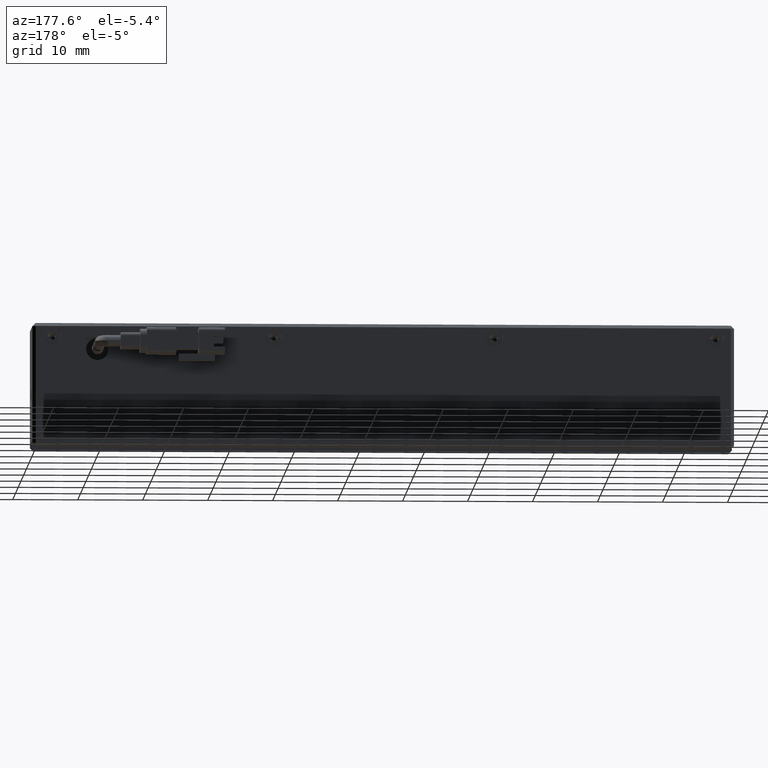
[diagram: clean part render]
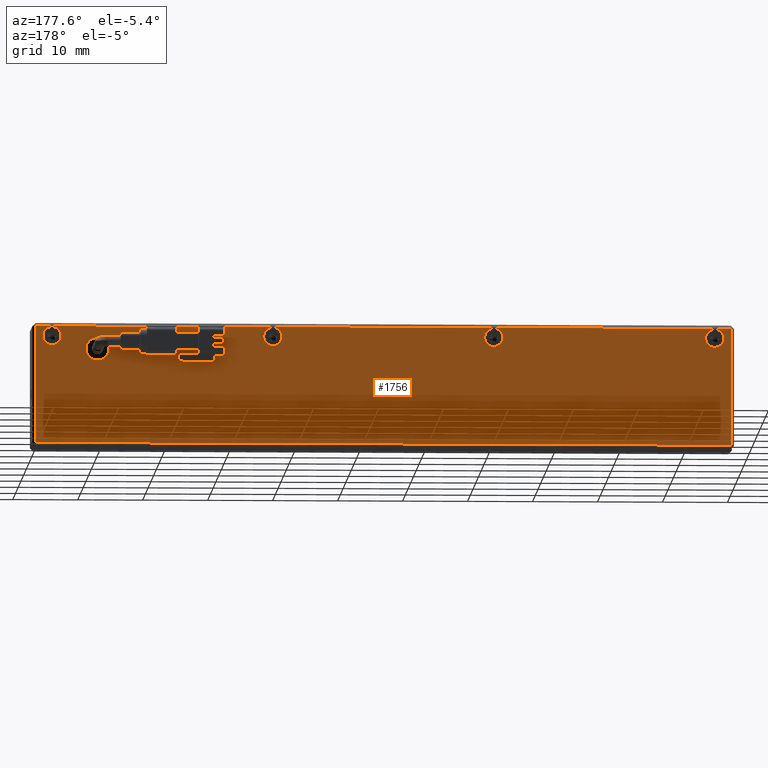
[diagram: same view with one face highlighted and labeled with its STEP entity id]
A machine part, auxiliary view. The second image highlights one B-rep face of the part: STEP entity #1756.
In plain terms, the highlighted planar face has unit normal (0, -1, 0).
Its self-contained STEP definition (entity closure, byte-faithful):
#115 = VERTEX_POINT ( 'NONE', #15332 ) ;
#359 = EDGE_CURVE ( 'NONE', #17969, #3771, #937, .T. ) ;
#517 = VERTEX_POINT ( 'NONE', #21251 ) ;
#597 = ORIENTED_EDGE ( 'NONE', *, *, #11314, .T. ) ;
#931 = EDGE_LOOP ( 'NONE', ( #19504, #18845 ) ) ;
#937 = CIRCLE ( 'NONE', #5511, 1.399999999999998600 ) ;
#952 = DIRECTION ( 'NONE',  ( -0.0000000000000000000, 1.000000000000000000, -0.0000000000000000000 ) ) ;
#951 = DIRECTION ( 'NONE',  ( 1.000000000000000000, 0.0000000000000000000, 0.0000000000000000000 ) ) ;
#1136 = DIRECTION ( 'NONE',  ( -0.0000000000000000000, 0.0000000000000000000, 1.000000000000000000 ) ) ;
#1164 = CIRCLE ( 'NONE', #9139, 1.399999999999998600 ) ;
#1325 = FACE_BOUND ( 'NONE', #4558, .T. ) ;
#1756 = ADVANCED_FACE ( 'NONE', ( #17262, #1325, #15683, #19604, #4715, #16722 ), #20399, .F. ) ;
#2600 = LINE ( 'NONE', #16017, #9413 ) ;
#2632 = AXIS2_PLACEMENT_3D ( 'NONE', #18716, #20372, #10372 ) ;
#2784 = CARTESIAN_POINT ( 'NONE',  ( -37.58835582942096200, 10.32147887323943000, -8.499999999999987600 ) ) ;
#2913 = CARTESIAN_POINT ( 'NONE',  ( -35.08835582942099100, 10.32147887323942300, 6.600000000000001400 ) ) ;
#2960 = EDGE_CURVE ( 'NONE', #8506, #3376, #20788, .T. ) ;
#2989 = EDGE_LOOP ( 'NONE', ( #12390, #6188 ) ) ;
#3376 = VERTEX_POINT ( 'NONE', #18426 ) ;
#3457 = DIRECTION ( 'NONE',  ( 0.0000000000000000000, 0.0000000000000000000, 1.000000000000000000 ) ) ;
#3672 = DIRECTION ( 'NONE',  ( -0.0000000000000000000, 1.000000000000000000, -0.0000000000000000000 ) ) ;
#3726 = CIRCLE ( 'NONE', #13732, 1.399999999999998600 ) ;
#3771 = VERTEX_POINT ( 'NONE', #18782 ) ;
#4090 = DIRECTION ( 'NONE',  ( 0.0000000000000000000, 0.0000000000000000000, 1.000000000000000000 ) ) ;
#4095 = AXIS2_PLACEMENT_3D ( 'NONE', #10742, #7311, #12427 ) ;
#4244 = ORIENTED_EDGE ( 'NONE', *, *, #9758, .F. ) ;
#4256 = CARTESIAN_POINT ( 'NONE',  ( 69.41164417057902400, 10.32147887323943000, 9.999999999999998200 ) ) ;
#4558 = EDGE_LOOP ( 'NONE', ( #21570, #11765 ) ) ;
#4715 = FACE_BOUND ( 'NONE', #2989, .T. ) ;
#5047 = ORIENTED_EDGE ( 'NONE', *, *, #17058, .F. ) ;
#5402 = DIRECTION ( 'NONE',  ( -0.0000000000000000000, 1.000000000000000000, -0.0000000000000000000 ) ) ;
#5511 = AXIS2_PLACEMENT_3D ( 'NONE', #20051, #15153, #3457 ) ;
#5660 = LINE ( 'NONE', #10495, #10591 ) ;
#5782 = DIRECTION ( 'NONE',  ( -0.0000000000000000000, 1.000000000000000000, -0.0000000000000000000 ) ) ;
#5927 = DIRECTION ( 'NONE',  ( 0.0000000000000000000, 0.0000000000000000000, 1.000000000000000000 ) ) ;
#6179 = CIRCLE ( 'NONE', #2632, 1.399999999999998600 ) ;
#6188 = ORIENTED_EDGE ( 'NONE', *, *, #2960, .F. ) ;
#6871 = CARTESIAN_POINT ( 'NONE',  ( 66.91164417057900900, 10.32147887323942300, 8.000000000000000000 ) ) ;
#7171 = DIRECTION ( 'NONE',  ( 0.0000000000000000000, 0.0000000000000000000, 1.000000000000000000 ) ) ;
#7213 = CARTESIAN_POINT ( 'NONE',  ( 59.91164417057902400, 10.32147887323943000, 5.999999999999984900 ) ) ;
#7311 = DIRECTION ( 'NONE',  ( -0.0000000000000000000, 1.000000000000000000, -0.0000000000000000000 ) ) ;
#7387 = EDGE_CURVE ( 'NONE', #13958, #9176, #16148, .T. ) ;
#7660 = CARTESIAN_POINT ( 'NONE',  ( 69.41164417057902400, 10.32147887323943000, 9.499999999999984000 ) ) ;
#7846 = CIRCLE ( 'NONE', #17666, 1.750000000000005100 ) ;
#7919 = EDGE_CURVE ( 'NONE', #16311, #8248, #6179, .T. ) ;
#8222 = CIRCLE ( 'NONE', #15974, 1.399999999999998600 ) ;
#8248 = VERTEX_POINT ( 'NONE', #18398 ) ;
#8387 = EDGE_CURVE ( 'NONE', #14839, #15831, #15282, .T. ) ;
#8506 = VERTEX_POINT ( 'NONE', #14069 ) ;
#9054 = DIRECTION ( 'NONE',  ( 0.0000000000000000000, 0.0000000000000000000, 1.000000000000000000 ) ) ;
#9100 = EDGE_CURVE ( 'NONE', #3376, #8506, #12343, .T. ) ;
#9139 = AXIS2_PLACEMENT_3D ( 'NONE', #19267, #5782, #4090 ) ;
#9176 = VERTEX_POINT ( 'NONE', #21190 ) ;
#9413 = VECTOR ( 'NONE', #12734, 1000.000000000000000 ) ;
#9506 = DIRECTION ( 'NONE',  ( 0.0000000000000000000, 0.0000000000000000000, 1.000000000000000000 ) ) ;
#9727 = AXIS2_PLACEMENT_3D ( 'NONE', #12145, #13699, #10395 ) ;
#9758 = EDGE_CURVE ( 'NONE', #13958, #19009, #2600, .T. ) ;
#10016 = CARTESIAN_POINT ( 'NONE',  ( -37.58835582942099100, 10.32147887323943000, 9.499999999999984000 ) ) ;
#10135 = DIRECTION ( 'NONE',  ( 0.0000000000000000000, 0.0000000000000000000, 1.000000000000000000 ) ) ;
#10372 = DIRECTION ( 'NONE',  ( 0.0000000000000000000, 0.0000000000000000000, 1.000000000000000000 ) ) ;
#10395 = DIRECTION ( 'NONE',  ( 0.0000000000000000000, -0.0000000000000000000, -1.000000000000000000 ) ) ;
#10495 = CARTESIAN_POINT ( 'NONE',  ( -38.08835582942097600, 10.32147887323943000, -8.499999999999987600 ) ) ;
#10591 = VECTOR ( 'NONE', #951, 1000.000000000000000 ) ;
#10742 = CARTESIAN_POINT ( 'NONE',  ( -1.088355829420985900, 10.32147887323942300, 8.000000000000000000 ) ) ;
#11236 = CARTESIAN_POINT ( 'NONE',  ( 59.91164417057902400, 10.32147887323943000, 5.999999999999984900 ) ) ;
#11314 = EDGE_CURVE ( 'NONE', #11316, #19009, #13054, .T. ) ;
#11316 = VERTEX_POINT ( 'NONE', #2784 ) ;
#11765 = ORIENTED_EDGE ( 'NONE', *, *, #18887, .T. ) ;
#11906 = ORIENTED_EDGE ( 'NONE', *, *, #14244, .F. ) ;
#12145 = CARTESIAN_POINT ( 'NONE',  ( -38.08835582942097600, 10.32147887323943000, 9.999999999999998200 ) ) ;
#12343 = CIRCLE ( 'NONE', #4095, 1.399999999999998600 ) ;
#12390 = ORIENTED_EDGE ( 'NONE', *, *, #9100, .F. ) ;
#12427 = DIRECTION ( 'NONE',  ( 0.0000000000000000000, 0.0000000000000000000, 1.000000000000000000 ) ) ;
#12546 = CARTESIAN_POINT ( 'NONE',  ( -1.088355829420985900, 10.32147887323942300, 8.000000000000000000 ) ) ;
#12577 = AXIS2_PLACEMENT_3D ( 'NONE', #12546, #952, #20800 ) ;
#12734 = DIRECTION ( 'NONE',  ( -1.000000000000000000, -0.0000000000000000000, -0.0000000000000000000 ) ) ;
#12871 = CARTESIAN_POINT ( 'NONE',  ( 32.91164417057901700, 10.32147887323942300, 8.000000000000000000 ) ) ;
#12939 = DIRECTION ( 'NONE',  ( -0.0000000000000000000, 1.000000000000000000, -0.0000000000000000000 ) ) ;
#13054 = LINE ( 'NONE', #17722, #15144 ) ;
#13639 = EDGE_CURVE ( 'NONE', #3771, #17969, #8222, .T. ) ;
#13699 = DIRECTION ( 'NONE',  ( 0.0000000000000000000, -1.000000000000000000, 0.0000000000000000000 ) ) ;
#13732 = AXIS2_PLACEMENT_3D ( 'NONE', #12871, #12939, #9506 ) ;
#13958 = VERTEX_POINT ( 'NONE', #7660 ) ;
#14069 = CARTESIAN_POINT ( 'NONE',  ( -1.088355829420985600, 10.32147887323942300, 6.600000000000001400 ) ) ;
#14124 = ORIENTED_EDGE ( 'NONE', *, *, #19226, .F. ) ;
#14244 = EDGE_CURVE ( 'NONE', #15831, #14839, #1164, .T. ) ;
#14321 = CARTESIAN_POINT ( 'NONE',  ( 32.91164417057901700, 10.32147887323942300, 9.399999999999998600 ) ) ;
#14529 = ORIENTED_EDGE ( 'NONE', *, *, #7387, .T. ) ;
#14754 = EDGE_LOOP ( 'NONE', ( #11906, #18883 ) ) ;
#14839 = VERTEX_POINT ( 'NONE', #2913 ) ;
#14918 = CARTESIAN_POINT ( 'NONE',  ( -35.08835582942099100, 10.32147887323942300, 9.399999999999998600 ) ) ;
#15144 = VECTOR ( 'NONE', #1136, 1000.000000000000000 ) ;
#15153 = DIRECTION ( 'NONE',  ( -0.0000000000000000000, 1.000000000000000000, -0.0000000000000000000 ) ) ;
#15282 = CIRCLE ( 'NONE', #19610, 1.399999999999998600 ) ;
#15332 = CARTESIAN_POINT ( 'NONE',  ( 59.91164417057902400, 10.32147887323943000, 7.749999999999989300 ) ) ;
#15387 = CARTESIAN_POINT ( 'NONE',  ( -35.08835582942099100, 10.32147887323942300, 8.000000000000000000 ) ) ;
#15683 = FACE_BOUND ( 'NONE', #931, .T. ) ;
#15691 = DIRECTION ( 'NONE',  ( 0.0000000000000000000, -1.000000000000000000, 0.0000000000000000000 ) ) ;
#15831 = VERTEX_POINT ( 'NONE', #14918 ) ;
#15924 = DIRECTION ( 'NONE',  ( 0.0000000000000000000, -1.000000000000000000, 0.0000000000000000000 ) ) ;
#15937 = DIRECTION ( 'NONE',  ( -0.0000000000000000000, -0.0000000000000000000, -1.000000000000000000 ) ) ;
#15974 = AXIS2_PLACEMENT_3D ( 'NONE', #6871, #3672, #7171 ) ;
#16017 = CARTESIAN_POINT ( 'NONE',  ( -38.08835582942097600, 10.32147887323943000, 9.499999999999984000 ) ) ;
#16148 = LINE ( 'NONE', #4256, #17198 ) ;
#16311 = VERTEX_POINT ( 'NONE', #14321 ) ;
#16381 = CIRCLE ( 'NONE', #19234, 1.750000000000005100 ) ;
#16722 = FACE_BOUND ( 'NONE', #14754, .T. ) ;
#17058 = EDGE_CURVE ( 'NONE', #8248, #16311, #3726, .T. ) ;
#17198 = VECTOR ( 'NONE', #15937, 1000.000000000000000 ) ;
#17262 = FACE_OUTER_BOUND ( 'NONE', #21362, .T. ) ;
#17490 = EDGE_CURVE ( 'NONE', #115, #517, #7846, .T. ) ;
#17666 = AXIS2_PLACEMENT_3D ( 'NONE', #7213, #15691, #9054 ) ;
#17722 = CARTESIAN_POINT ( 'NONE',  ( -37.58835582942096200, 10.32147887323943000, 9.999999999999998200 ) ) ;
#17969 = VERTEX_POINT ( 'NONE', #21585 ) ;
#18398 = CARTESIAN_POINT ( 'NONE',  ( 32.91164417057901700, 10.32147887323942300, 6.600000000000001400 ) ) ;
#18426 = CARTESIAN_POINT ( 'NONE',  ( -1.088355829420985900, 10.32147887323942300, 9.399999999999998600 ) ) ;
#18716 = CARTESIAN_POINT ( 'NONE',  ( 32.91164417057901700, 10.32147887323942300, 8.000000000000000000 ) ) ;
#18782 = CARTESIAN_POINT ( 'NONE',  ( 66.91164417057900900, 10.32147887323942300, 6.600000000000001400 ) ) ;
#18845 = ORIENTED_EDGE ( 'NONE', *, *, #13639, .F. ) ;
#18883 = ORIENTED_EDGE ( 'NONE', *, *, #8387, .F. ) ;
#18887 = EDGE_CURVE ( 'NONE', #517, #115, #16381, .T. ) ;
#18957 = ORIENTED_EDGE ( 'NONE', *, *, #7919, .F. ) ;
#19009 = VERTEX_POINT ( 'NONE', #10016 ) ;
#19226 = EDGE_CURVE ( 'NONE', #11316, #9176, #5660, .T. ) ;
#19234 = AXIS2_PLACEMENT_3D ( 'NONE', #11236, #15924, #5927 ) ;
#19267 = CARTESIAN_POINT ( 'NONE',  ( -35.08835582942099100, 10.32147887323942300, 8.000000000000000000 ) ) ;
#19504 = ORIENTED_EDGE ( 'NONE', *, *, #359, .F. ) ;
#19604 = FACE_BOUND ( 'NONE', #19760, .T. ) ;
#19610 = AXIS2_PLACEMENT_3D ( 'NONE', #15387, #5402, #10135 ) ;
#19760 = EDGE_LOOP ( 'NONE', ( #18957, #5047 ) ) ;
#20051 = CARTESIAN_POINT ( 'NONE',  ( 66.91164417057900900, 10.32147887323942300, 8.000000000000000000 ) ) ;
#20372 = DIRECTION ( 'NONE',  ( -0.0000000000000000000, 1.000000000000000000, -0.0000000000000000000 ) ) ;
#20399 = PLANE ( 'NONE',  #9727 ) ;
#20788 = CIRCLE ( 'NONE', #12577, 1.399999999999998600 ) ;
#20800 = DIRECTION ( 'NONE',  ( 0.0000000000000000000, 0.0000000000000000000, 1.000000000000000000 ) ) ;
#21190 = CARTESIAN_POINT ( 'NONE',  ( 69.41164417057905200, 10.32147887323943000, -8.499999999999987600 ) ) ;
#21251 = CARTESIAN_POINT ( 'NONE',  ( 59.91164417057902400, 10.32147887323943000, 4.249999999999979600 ) ) ;
#21362 = EDGE_LOOP ( 'NONE', ( #4244, #14529, #14124, #597 ) ) ;
#21570 = ORIENTED_EDGE ( 'NONE', *, *, #17490, .T. ) ;
#21585 = CARTESIAN_POINT ( 'NONE',  ( 66.91164417057900900, 10.32147887323942300, 9.399999999999998600 ) ) ;